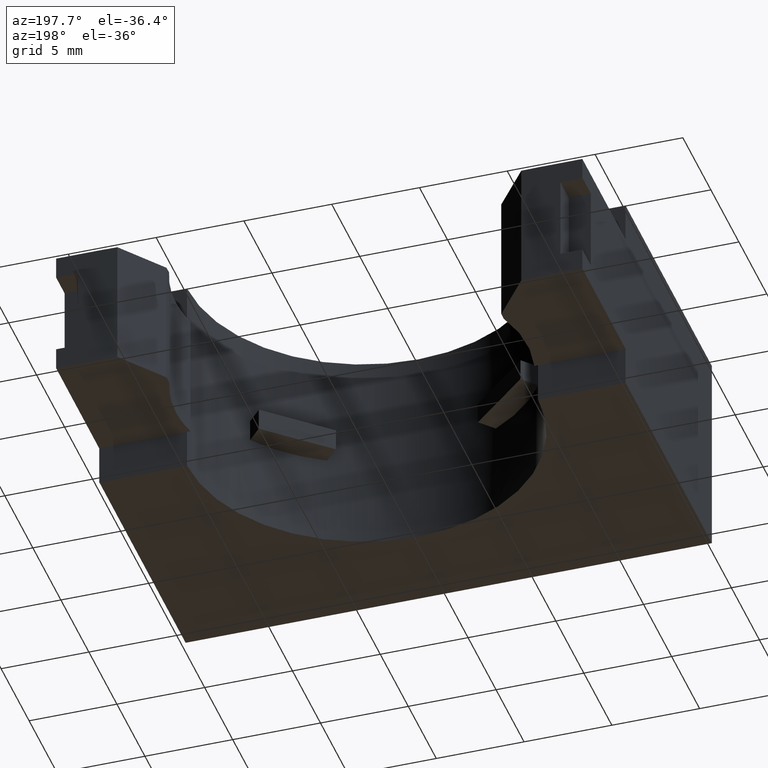
[diagram: clean part render]
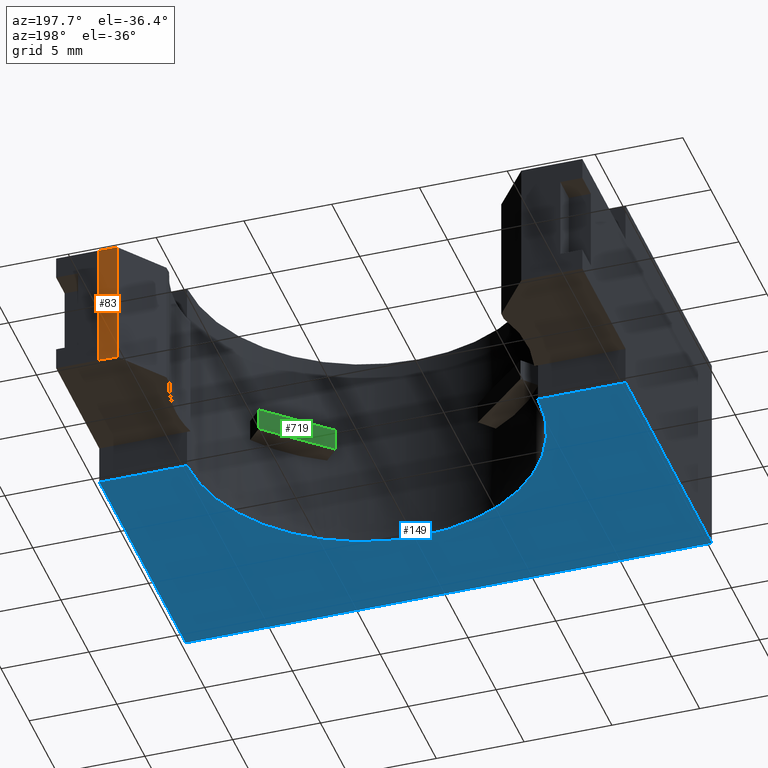
[diagram: same view with three faces highlighted in distinct colors, each labeled with its STEP entity id]
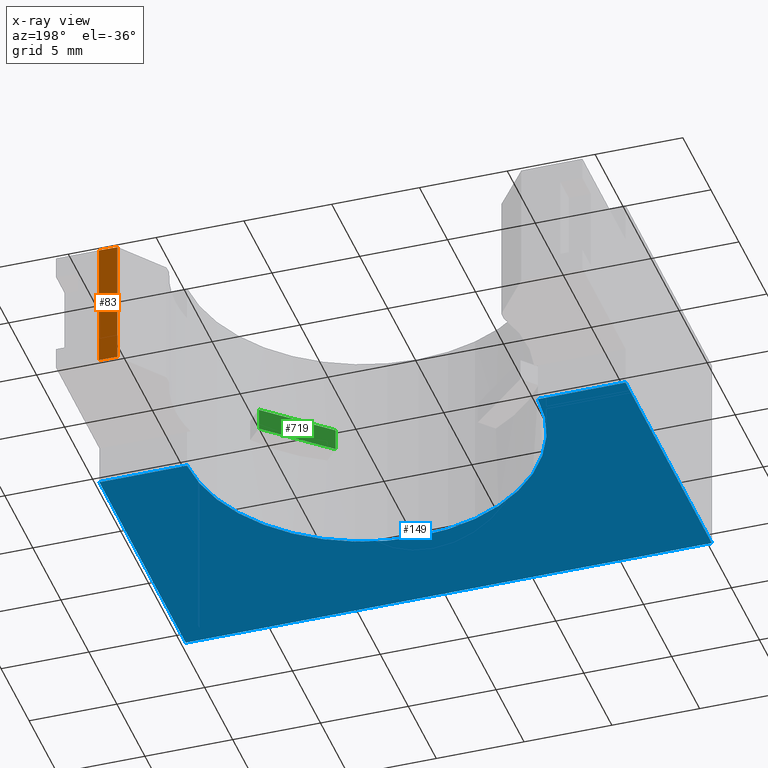
[diagram: x-ray of the same camera — body ghosted, the three highlighted faces saturated]
A machine part, auxiliary view with three faces highlighted in distinct colors.
The next image is the same camera in x-ray (body ghosted, the three faces saturated) — at least one of them is partly hidden behind the body in this view.
Their STEP definitions:

[orange] entity #83 — the highlighted planar face has unit normal (0.0175, -0.9998, 0).
#27 = ORIENTED_EDGE ( 'NONE', *, *, #28, .T. ) ;
#28 = EDGE_CURVE ( 'NONE', #121, #29, #697, .T. ) ;
#29 = VERTEX_POINT ( 'NONE', #693 ) ;
#30 = ORIENTED_EDGE ( 'NONE', *, *, #31, .F. ) ;
#31 = EDGE_CURVE ( 'NONE', #32, #29, #692, .T. ) ;
#32 = VERTEX_POINT ( 'NONE', #771 ) ;
#33 = ORIENTED_EDGE ( 'NONE', *, *, #34, .T. ) ;
#34 = EDGE_CURVE ( 'NONE', #32, #120, #770, .T. ) ;
#51 = EDGE_LOOP ( 'NONE', ( #203, #27, #30, #33 ) ) ;
#83 = ADVANCED_FACE ( 'NONE', ( #736 ), #735, .F. ) ;
#120 = VERTEX_POINT ( 'NONE', #958 ) ;
#121 = VERTEX_POINT ( 'NONE', #954 ) ;
#203 = ORIENTED_EDGE ( 'NONE', *, *, #204, .F. ) ;
#204 = EDGE_CURVE ( 'NONE', #121, #120, #922, .T. ) ;
#691 = CARTESIAN_POINT ( 'NONE',  ( 0.4943750000000004000, 0.4550000000000001800, 0.0000000000000000000 ) ) ;
#692 = LINE ( 'NONE', #691, #773 ) ;
#693 = CARTESIAN_POINT ( 'NONE',  ( 0.4943750000005181500, 0.4550000000000047300, 0.3804500000000002900 ) ) ;
#694 = DIRECTION ( 'NONE',  ( 0.9998469484184250300, 0.01749513470548417700, 3.939069943192004700E-018 ) ) ;
#695 = VECTOR ( 'NONE', #694, 39.37007874015748100 ) ;
#696 = CARTESIAN_POINT ( 'NONE',  ( 0.3753125000000004900, 0.4529166666666668600, 0.3804500000000002900 ) ) ;
#697 = LINE ( 'NONE', #696, #695 ) ;
#731 = DIRECTION ( 'NONE',  ( 0.9998469484184250300, 0.01749513470548417700, 0.0000000000000000000 ) ) ;
#732 = DIRECTION ( 'NONE',  ( 0.01749513470548418000, -0.9998469484184251400, 0.0000000000000000000 ) ) ;
#733 = CARTESIAN_POINT ( 'NONE',  ( 0.3753125000000004900, 0.4529166666666668600, 0.0000000000000000000 ) ) ;
#734 = AXIS2_PLACEMENT_3D ( 'NONE', #733, #732, #731 ) ;
#735 = PLANE ( 'NONE',  #734 ) ;
#736 = FACE_OUTER_BOUND ( 'NONE', #51, .T. ) ;
#767 = DIRECTION ( 'NONE',  ( -0.9998469484184250300, -0.01749513470548417700, -1.969534971596002700E-018 ) ) ;
#768 = VECTOR ( 'NONE', #767, 39.37007874015748100 ) ;
#769 = CARTESIAN_POINT ( 'NONE',  ( 0.3753125000000004900, 0.4529166666666668600, 0.08954999999999976900 ) ) ;
#770 = LINE ( 'NONE', #769, #768 ) ;
#771 = CARTESIAN_POINT ( 'NONE',  ( 0.4943750000000004000, 0.4550000000000001800, 0.08954999999999976900 ) ) ;
#772 = DIRECTION ( 'NONE',  ( -0.0000000000000000000, -0.0000000000000000000, 1.000000000000000000 ) ) ;
#773 = VECTOR ( 'NONE', #772, 39.37007874015748100 ) ;
#919 = DIRECTION ( 'NONE',  ( 0.0000000000000000000, 0.0000000000000000000, -1.000000000000000000 ) ) ;
#920 = VECTOR ( 'NONE', #919, 39.37007874015748100 ) ;
#921 = CARTESIAN_POINT ( 'NONE',  ( 0.4528125000000004500, 0.4542727471566060400, 0.4699999999999999700 ) ) ;
#922 = LINE ( 'NONE', #921, #920 ) ;
#954 = CARTESIAN_POINT ( 'NONE',  ( 0.4528125000000004500, 0.4542727471566060400, 0.3804500000000002900 ) ) ;
#958 = CARTESIAN_POINT ( 'NONE',  ( 0.4528124999999176300, 0.4542727471566050900, 0.08954999999999976900 ) ) ;

[blue] entity #149 — the highlighted planar face has unit normal (-0, 0, 1).
#122 = EDGE_CURVE ( 'NONE', #141, #123, #1031, .T. ) ;
#123 = VERTEX_POINT ( 'NONE', #1027 ) ;
#141 = VERTEX_POINT ( 'NONE', #940 ) ;
#149 = ADVANCED_FACE ( 'NONE', ( #863 ), #862, .F. ) ;
#150 = EDGE_LOOP ( 'NONE', ( #151, #366, #472, #438, #487, #470 ) ) ;
#151 = ORIENTED_EDGE ( 'NONE', *, *, #122, .F. ) ;
#259 = VERTEX_POINT ( 'NONE', #1042 ) ;
#287 = VERTEX_POINT ( 'NONE', #1137 ) ;
#296 = EDGE_CURVE ( 'NONE', #123, #259, #1054, .T. ) ;
#310 = EDGE_CURVE ( 'NONE', #311, #287, #1068, .T. ) ;
#311 = VERTEX_POINT ( 'NONE', #1158 ) ;
#365 = VERTEX_POINT ( 'NONE', #1221 ) ;
#366 = ORIENTED_EDGE ( 'NONE', *, *, #367, .T. ) ;
#367 = EDGE_CURVE ( 'NONE', #141, #311, #1220, .T. ) ;
#438 = ORIENTED_EDGE ( 'NONE', *, *, #526, .T. ) ;
#470 = ORIENTED_EDGE ( 'NONE', *, *, #296, .F. ) ;
#472 = ORIENTED_EDGE ( 'NONE', *, *, #310, .T. ) ;
#487 = ORIENTED_EDGE ( 'NONE', *, *, #508, .F. ) ;
#508 = EDGE_CURVE ( 'NONE', #259, #365, #1562, .T. ) ;
#526 = EDGE_CURVE ( 'NONE', #287, #365, #1481, .T. ) ;
#857 = DIRECTION ( 'NONE',  ( 1.000000000000000000, 0.0000000000000000000, 0.0000000000000000000 ) ) ;
#858 = DIRECTION ( 'NONE',  ( -0.0000000000000000000, 0.0000000000000000000, 1.000000000000000000 ) ) ;
#859 = AXIS2_PLACEMENT_3D ( 'NONE', #861, #858, #857 ) ;
#861 = CARTESIAN_POINT ( 'NONE',  ( -0.5899999999999995200, -0.4549999999999996300, 0.0000000000000000000 ) ) ;
#862 = PLANE ( 'NONE',  #859 ) ;
#863 = FACE_OUTER_BOUND ( 'NONE', #150, .T. ) ;
#940 = CARTESIAN_POINT ( 'NONE',  ( -0.5899999999999997500, 0.1516666666666670600, 0.0000000000000000000 ) ) ;
#1027 = CARTESIAN_POINT ( 'NONE',  ( -0.5899999999999995200, -0.4549999999999996300, 0.0000000000000000000 ) ) ;
#1028 = DIRECTION ( 'NONE',  ( 1.501015381134210600E-016, -1.000000000000000000, 0.0000000000000000000 ) ) ;
#1029 = VECTOR ( 'NONE', #1028, 39.37007874015748100 ) ;
#1030 = CARTESIAN_POINT ( 'NONE',  ( -0.5899999999999997500, 0.4550000000000003500, 0.0000000000000000000 ) ) ;
#1031 = LINE ( 'NONE', #1030, #1029 ) ;
#1042 = CARTESIAN_POINT ( 'NONE',  ( 0.5900000000000004100, -0.4549999999999996300, 0.0000000000000000000 ) ) ;
#1051 = DIRECTION ( 'NONE',  ( 1.000000000000000000, 0.0000000000000000000, 0.0000000000000000000 ) ) ;
#1052 = VECTOR ( 'NONE', #1051, 39.37007874015748100 ) ;
#1053 = CARTESIAN_POINT ( 'NONE',  ( -0.5899999999999995200, -0.4549999999999996300, 0.0000000000000000000 ) ) ;
#1054 = LINE ( 'NONE', #1053, #1052 ) ;
#1064 = DIRECTION ( 'NONE',  ( 1.000000000000000000, 0.0000000000000000000, 0.0000000000000000000 ) ) ;
#1065 = DIRECTION ( 'NONE',  ( 0.0000000000000000000, 0.0000000000000000000, 1.000000000000000000 ) ) ;
#1066 = CARTESIAN_POINT ( 'NONE',  ( 0.0000000000000000000, 0.1516666666666670600, 0.0000000000000000000 ) ) ;
#1067 = AXIS2_PLACEMENT_3D ( 'NONE', #1066, #1065, #1064 ) ;
#1068 = CIRCLE ( 'NONE', #1067, 0.3933333333333332600 ) ;
#1137 = CARTESIAN_POINT ( 'NONE',  ( 0.3933333333333332600, 0.1516666666666670600, 0.0000000000000000000 ) ) ;
#1158 = CARTESIAN_POINT ( 'NONE',  ( -0.3933333333333332600, 0.1516666666666670600, 0.0000000000000000000 ) ) ;
#1217 = DIRECTION ( 'NONE',  ( 1.000000000000000000, -0.0000000000000000000, -0.0000000000000000000 ) ) ;
#1218 = VECTOR ( 'NONE', #1217, 39.37007874015748100 ) ;
#1219 = CARTESIAN_POINT ( 'NONE',  ( -0.5899999999999997500, 0.1516666666666670600, 0.0000000000000000000 ) ) ;
#1220 = LINE ( 'NONE', #1219, #1218 ) ;
#1221 = CARTESIAN_POINT ( 'NONE',  ( 0.5900000000000004100, 0.1516666666666670600, 0.0000000000000000000 ) ) ;
#1481 = LINE ( 'NONE', #1532, #1531 ) ;
#1530 = DIRECTION ( 'NONE',  ( 1.000000000000000000, -0.0000000000000000000, -0.0000000000000000000 ) ) ;
#1531 = VECTOR ( 'NONE', #1530, 39.37007874015748100 ) ;
#1532 = CARTESIAN_POINT ( 'NONE',  ( -0.5899999999999997500, 0.1516666666666670600, 0.0000000000000000000 ) ) ;
#1559 = DIRECTION ( 'NONE',  ( -6.004061524536843300E-016, 1.000000000000000000, -0.0000000000000000000 ) ) ;
#1560 = VECTOR ( 'NONE', #1559, 39.37007874015748100 ) ;
#1561 = CARTESIAN_POINT ( 'NONE',  ( 0.5899999999999998600, 0.4550000000000001800, 0.0000000000000000000 ) ) ;
#1562 = LINE ( 'NONE', #1561, #1560 ) ;

[green] entity #719 — the highlighted planar face has unit normal (0.6691, -0.7431, -0).
#639 = ORIENTED_EDGE ( 'NONE', *, *, #640, .F. ) ;
#640 = EDGE_CURVE ( 'NONE', #641, #651, #1592, .T. ) ;
#641 = VERTEX_POINT ( 'NONE', #1516 ) ;
#642 = ORIENTED_EDGE ( 'NONE', *, *, #643, .F. ) ;
#643 = EDGE_CURVE ( 'NONE', #802, #641, #1515, .T. ) ;
#644 = ORIENTED_EDGE ( 'NONE', *, *, #714, .T. ) ;
#651 = VERTEX_POINT ( 'NONE', #1659 ) ;
#707 = VERTEX_POINT ( 'NONE', #1644 ) ;
#712 = ORIENTED_EDGE ( 'NONE', *, *, #713, .T. ) ;
#713 = EDGE_CURVE ( 'NONE', #707, #651, #1679, .T. ) ;
#714 = EDGE_CURVE ( 'NONE', #802, #707, #1668, .T. ) ;
#719 = ADVANCED_FACE ( 'NONE', ( #1661 ), #1681, .F. ) ;
#720 = EDGE_LOOP ( 'NONE', ( #712, #639, #642, #644 ) ) ;
#802 = VERTEX_POINT ( 'NONE', #1648 ) ;
#1512 = DIRECTION ( 'NONE',  ( 0.7431448254773597200, 0.6691306063588964300, 0.0000000000000000000 ) ) ;
#1513 = VECTOR ( 'NONE', #1512, 39.37007874015748900 ) ;
#1514 = CARTESIAN_POINT ( 'NONE',  ( 0.1593527062269750300, -0.1601266819099469700, 0.2099999999999999900 ) ) ;
#1515 = LINE ( 'NONE', #1514, #1513 ) ;
#1516 = CARTESIAN_POINT ( 'NONE',  ( 0.2934284184901820300, -0.03940436834602942900, 0.2099999999999999900 ) ) ;
#1517 = DIRECTION ( 'NONE',  ( -0.0000000000000000000, -8.326672684688672800E-017, 1.000000000000000000 ) ) ;
#1518 = VECTOR ( 'NONE', #1517, 39.37007874015748100 ) ;
#1519 = CARTESIAN_POINT ( 'NONE',  ( 0.2934284184901820300, -0.03940436834602942900, 0.2099999999999999900 ) ) ;
#1592 = LINE ( 'NONE', #1519, #1518 ) ;
#1628 = DIRECTION ( 'NONE',  ( 0.7431448254773597200, 0.6691306063588964300, 0.0000000000000000000 ) ) ;
#1629 = DIRECTION ( 'NONE',  ( 0.6691306063588965400, -0.7431448254773598300, -6.187923719070066400E-017 ) ) ;
#1630 = AXIS2_PLACEMENT_3D ( 'NONE', #1680, #1629, #1628 ) ;
#1644 = CARTESIAN_POINT ( 'NONE',  ( 0.1593527062269750300, -0.1601266819099469700, 0.2600000000000000100 ) ) ;
#1648 = CARTESIAN_POINT ( 'NONE',  ( 0.1593527062269750300, -0.1601266819099469700, 0.2099999999999999900 ) ) ;
#1659 = CARTESIAN_POINT ( 'NONE',  ( 0.2934284184901820300, -0.03940436834602942900, 0.2600000000000000100 ) ) ;
#1661 = FACE_OUTER_BOUND ( 'NONE', #720, .T. ) ;
#1662 = DIRECTION ( 'NONE',  ( -0.0000000000000000000, -8.326672684688672800E-017, 1.000000000000000000 ) ) ;
#1663 = VECTOR ( 'NONE', #1662, 39.37007874015748100 ) ;
#1665 = DIRECTION ( 'NONE',  ( 0.7431448254773597200, 0.6691306063588964300, 0.0000000000000000000 ) ) ;
#1666 = VECTOR ( 'NONE', #1665, 39.37007874015748900 ) ;
#1667 = CARTESIAN_POINT ( 'NONE',  ( 0.1593527062269750300, -0.1601266819099469700, 0.2099999999999999900 ) ) ;
#1668 = LINE ( 'NONE', #1667, #1663 ) ;
#1678 = CARTESIAN_POINT ( 'NONE',  ( 0.1593527062269750300, -0.1601266819099469700, 0.2600000000000000100 ) ) ;
#1679 = LINE ( 'NONE', #1678, #1666 ) ;
#1680 = CARTESIAN_POINT ( 'NONE',  ( 0.1593527062269750300, -0.1601266819099469700, 0.2099999999999999900 ) ) ;
#1681 = PLANE ( 'NONE',  #1630 ) ;